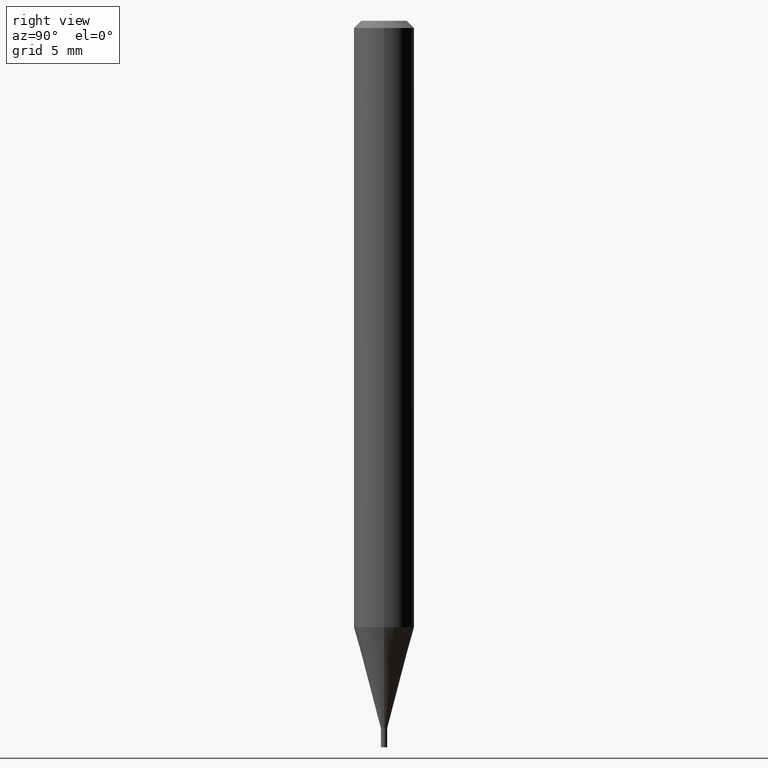
[diagram: clean part render]
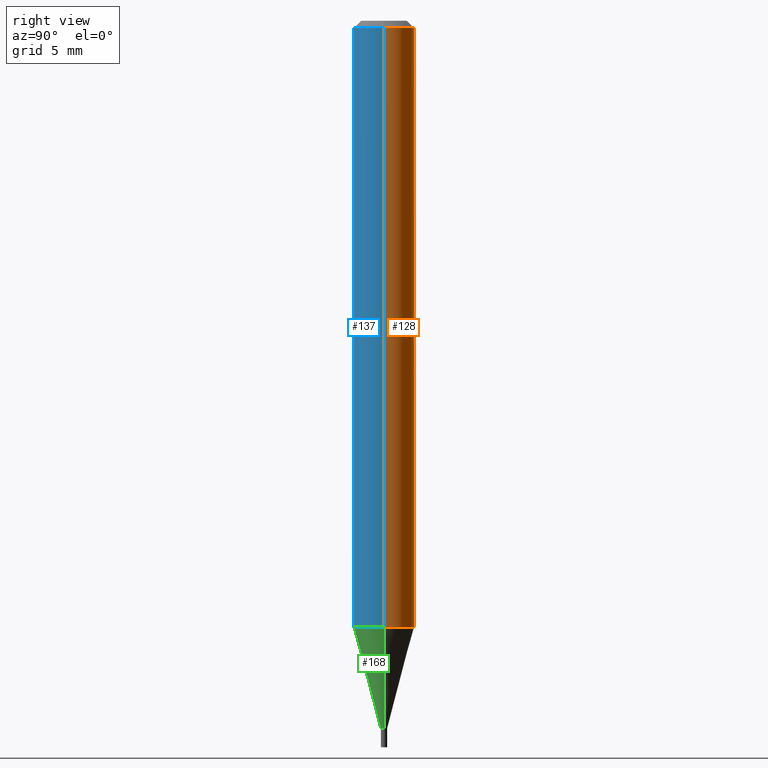
[diagram: same view with three faces highlighted in distinct colors, each labeled with its STEP entity id]
A machine part, right view with three faces highlighted in distinct colors.
Their STEP definitions:

[orange] entity #128 — the highlighted cylindrical surface (edge-blend (fillet) strip) has radius 1.5875 mm, axis along (-0, 0, 1).
#10 = CARTESIAN_POINT ( 'NONE',  ( 0.000000000000000000, 0.000000000000000000, 0.000000000000000000 ) ) ;
#17 = LINE ( 'NONE', #448, #249 ) ;
#56 = DIRECTION ( 'NONE',  ( -2.445468806185136877E-29, 3.491481338843145188E-15, 1.000000000000000000 ) ) ;
#59 = EDGE_CURVE ( 'NONE', #401, #178, #228, .T. ) ;
#71 = AXIS2_PLACEMENT_3D ( 'NONE', #10, #195, #154 ) ;
#79 = CARTESIAN_POINT ( 'NONE',  ( 0.06250000000000001388, -4.807787801391715089E-15, -1.252005154776141937 ) ) ;
#98 = AXIS2_PLACEMENT_3D ( 'NONE', #242, #274, #127 ) ;
#113 = CARTESIAN_POINT ( 'NONE',  ( 3.061739551188048942E-29, -4.371352634036324208E-15, -1.252005154776141937 ) ) ;
#121 = CIRCLE ( 'NONE', #98, 0.06250000000000000000 ) ;
#125 = VERTEX_POINT ( 'NONE', #79 ) ;
#127 = DIRECTION ( 'NONE',  ( 1.000000000000000000, -6.982962677686266711E-15, 0.000000000000000000 ) ) ;
#128 = ADVANCED_FACE ( 'NONE', ( #407 ), #439, .T. ) ;
#143 = CIRCLE ( 'NONE', #196, 0.06250000000000000000 ) ;
#154 = DIRECTION ( 'NONE',  ( 1.000000000000000000, -6.982962677686266711E-15, 4.876176775795935793E-29 ) ) ;
#156 = CARTESIAN_POINT ( 'NONE',  ( -0.06250000000000000000, 4.440892098500626162E-16, -3.074334431409316114E-30 ) ) ;
#160 = EDGE_CURVE ( 'NONE', #125, #401, #143, .T. ) ;
#178 = VERTEX_POINT ( 'NONE', #192 ) ;
#181 = EDGE_CURVE ( 'NONE', #125, #220, #17, .T. ) ;
#184 = ORIENTED_EDGE ( 'NONE', *, *, #160, .T. ) ;
#192 = CARTESIAN_POINT ( 'NONE',  ( -0.06250000000000000000, -1.767773217209423028E-15, -0.01499999999999999944 ) ) ;
#195 = DIRECTION ( 'NONE',  ( -2.445468806185136597E-29, 3.491481338843145583E-15, 1.000000000000000000 ) ) ;
#196 = AXIS2_PLACEMENT_3D ( 'NONE', #113, #330, #227 ) ;
#204 = VECTOR ( 'NONE', #261, 39.37007874015748143 ) ;
#210 = EDGE_LOOP ( 'NONE', ( #184, #213, #432, #344 ) ) ;
#213 = ORIENTED_EDGE ( 'NONE', *, *, #59, .T. ) ;
#220 = VERTEX_POINT ( 'NONE', #275 ) ;
#227 = DIRECTION ( 'NONE',  ( 1.000000000000000000, -6.982962677686262766E-15, 0.000000000000000000 ) ) ;
#228 = LINE ( 'NONE', #156, #204 ) ;
#242 = CARTESIAN_POINT ( 'NONE',  ( 3.668203209277705088E-31, -5.237222008264718399E-17, -0.01499999999999999944 ) ) ;
#249 = VECTOR ( 'NONE', #56, 39.37007874015748143 ) ;
#261 = DIRECTION ( 'NONE',  ( -2.445468806185136877E-29, 3.491481338843145188E-15, 1.000000000000000000 ) ) ;
#274 = DIRECTION ( 'NONE',  ( -2.445468806185136597E-29, 3.491481338843145583E-15, 1.000000000000000000 ) ) ;
#275 = CARTESIAN_POINT ( 'NONE',  ( 0.06250000000000000000, -4.888073874380388472E-16, -0.01499999999999999944 ) ) ;
#279 = EDGE_CURVE ( 'NONE', #220, #178, #121, .T. ) ;
#330 = DIRECTION ( 'NONE',  ( -2.445468806185136597E-29, 3.491481338843145583E-15, 1.000000000000000000 ) ) ;
#344 = ORIENTED_EDGE ( 'NONE', *, *, #181, .F. ) ;
#401 = VERTEX_POINT ( 'NONE', #459 ) ;
#407 = FACE_OUTER_BOUND ( 'NONE', #210, .T. ) ;
#432 = ORIENTED_EDGE ( 'NONE', *, *, #279, .F. ) ;
#439 = CYLINDRICAL_SURFACE ( 'NONE', #71, 0.06250000000000000000 ) ;
#448 = CARTESIAN_POINT ( 'NONE',  ( 0.06250000000000000000, -4.364351673553916694E-16, 3.047610484872459871E-30 ) ) ;
#459 = CARTESIAN_POINT ( 'NONE',  ( -0.06250000000000001388, -3.927263424186260803E-15, -1.252005154776141937 ) ) ;

[blue] entity #137 — the highlighted cylindrical surface (edge-blend (fillet) strip) has radius 1.5875 mm, axis along (-0, 0, 1).
#5 = DIRECTION ( 'NONE',  ( -2.445468806185136597E-29, 3.491481338843145583E-15, 1.000000000000000000 ) ) ;
#17 = LINE ( 'NONE', #448, #249 ) ;
#20 = CIRCLE ( 'NONE', #340, 0.06250000000000000000 ) ;
#33 = ORIENTED_EDGE ( 'NONE', *, *, #181, .T. ) ;
#56 = DIRECTION ( 'NONE',  ( -2.445468806185136877E-29, 3.491481338843145188E-15, 1.000000000000000000 ) ) ;
#59 = EDGE_CURVE ( 'NONE', #401, #178, #228, .T. ) ;
#76 = CYLINDRICAL_SURFACE ( 'NONE', #363, 0.06250000000000000000 ) ;
#79 = CARTESIAN_POINT ( 'NONE',  ( 0.06250000000000001388, -4.807787801391715089E-15, -1.252005154776141937 ) ) ;
#89 = EDGE_CURVE ( 'NONE', #401, #125, #20, .T. ) ;
#125 = VERTEX_POINT ( 'NONE', #79 ) ;
#137 = ADVANCED_FACE ( 'NONE', ( #404 ), #76, .T. ) ;
#142 = CIRCLE ( 'NONE', #218, 0.06250000000000000000 ) ;
#149 = DIRECTION ( 'NONE',  ( 1.000000000000000000, -6.982962677686262766E-15, 0.000000000000000000 ) ) ;
#156 = CARTESIAN_POINT ( 'NONE',  ( -0.06250000000000000000, 4.440892098500626162E-16, -3.074334431409316114E-30 ) ) ;
#177 = DIRECTION ( 'NONE',  ( 1.000000000000000000, -6.982962677686266711E-15, 0.000000000000000000 ) ) ;
#178 = VERTEX_POINT ( 'NONE', #192 ) ;
#181 = EDGE_CURVE ( 'NONE', #125, #220, #17, .T. ) ;
#192 = CARTESIAN_POINT ( 'NONE',  ( -0.06250000000000000000, -1.767773217209423028E-15, -0.01499999999999999944 ) ) ;
#204 = VECTOR ( 'NONE', #261, 39.37007874015748143 ) ;
#218 = AXIS2_PLACEMENT_3D ( 'NONE', #316, #428, #177 ) ;
#220 = VERTEX_POINT ( 'NONE', #275 ) ;
#228 = LINE ( 'NONE', #156, #204 ) ;
#241 = ORIENTED_EDGE ( 'NONE', *, *, #59, .F. ) ;
#249 = VECTOR ( 'NONE', #56, 39.37007874015748143 ) ;
#261 = DIRECTION ( 'NONE',  ( -2.445468806185136877E-29, 3.491481338843145188E-15, 1.000000000000000000 ) ) ;
#275 = CARTESIAN_POINT ( 'NONE',  ( 0.06250000000000000000, -4.888073874380388472E-16, -0.01499999999999999944 ) ) ;
#283 = ORIENTED_EDGE ( 'NONE', *, *, #89, .T. ) ;
#300 = DIRECTION ( 'NONE',  ( -2.445468806185136597E-29, 3.491481338843145583E-15, 1.000000000000000000 ) ) ;
#316 = CARTESIAN_POINT ( 'NONE',  ( 3.668203209277705088E-31, -5.237222008264718399E-17, -0.01499999999999999944 ) ) ;
#323 = ORIENTED_EDGE ( 'NONE', *, *, #399, .F. ) ;
#336 = DIRECTION ( 'NONE',  ( 1.000000000000000000, -6.982962677686266711E-15, 4.876176775795935793E-29 ) ) ;
#340 = AXIS2_PLACEMENT_3D ( 'NONE', #441, #300, #149 ) ;
#363 = AXIS2_PLACEMENT_3D ( 'NONE', #377, #5, #336 ) ;
#377 = CARTESIAN_POINT ( 'NONE',  ( 0.000000000000000000, 0.000000000000000000, 0.000000000000000000 ) ) ;
#397 = EDGE_LOOP ( 'NONE', ( #241, #283, #33, #323 ) ) ;
#399 = EDGE_CURVE ( 'NONE', #178, #220, #142, .T. ) ;
#401 = VERTEX_POINT ( 'NONE', #459 ) ;
#404 = FACE_OUTER_BOUND ( 'NONE', #397, .T. ) ;
#428 = DIRECTION ( 'NONE',  ( -2.445468806185136597E-29, 3.491481338843145583E-15, 1.000000000000000000 ) ) ;
#441 = CARTESIAN_POINT ( 'NONE',  ( 3.061739551188048942E-29, -4.371352634036324208E-15, -1.252005154776141937 ) ) ;
#448 = CARTESIAN_POINT ( 'NONE',  ( 0.06250000000000000000, -4.364351673553916694E-16, 3.047610484872459871E-30 ) ) ;
#459 = CARTESIAN_POINT ( 'NONE',  ( -0.06250000000000001388, -3.927263424186260803E-15, -1.252005154776141937 ) ) ;

[green] entity #168 — the highlighted conical surface has half-angle 15 deg.
#20 = CIRCLE ( 'NONE', #340, 0.06250000000000000000 ) ;
#26 = EDGE_CURVE ( 'NONE', #67, #125, #443, .T. ) ;
#40 = DIRECTION ( 'NONE',  ( -0.2588190451025211281, 5.211531920934548675E-15, 0.9659258262890682012 ) ) ;
#41 = CARTESIAN_POINT ( 'NONE',  ( 0.006499999999999648420, -5.146443493454794469E-15, -1.461000000000000076 ) ) ;
#65 = CARTESIAN_POINT ( 'NONE',  ( -0.006499999999999648420, -5.054868958225431584E-15, -1.461000000000000076 ) ) ;
#67 = VERTEX_POINT ( 'NONE', #260 ) ;
#79 = CARTESIAN_POINT ( 'NONE',  ( 0.06250000000000001388, -4.807787801391715089E-15, -1.252005154776141937 ) ) ;
#88 = ORIENTED_EDGE ( 'NONE', *, *, #433, .F. ) ;
#89 = EDGE_CURVE ( 'NONE', #401, #125, #20, .T. ) ;
#94 = CARTESIAN_POINT ( 'NONE',  ( 3.572829925836484317E-29, -5.101054236049835376E-15, -1.461000000000000076 ) ) ;
#99 = DIRECTION ( 'NONE',  ( -2.445468806185136597E-29, 3.491481338843145583E-15, 1.000000000000000000 ) ) ;
#101 = VERTEX_POINT ( 'NONE', #444 ) ;
#114 = VECTOR ( 'NONE', #298, 39.37007874015748143 ) ;
#125 = VERTEX_POINT ( 'NONE', #79 ) ;
#131 = VECTOR ( 'NONE', #40, 39.37007874015748143 ) ;
#133 = CONICAL_SURFACE ( 'NONE', #409, 0.006499999999999648420, 0.2617993877991497964 ) ;
#145 = ORIENTED_EDGE ( 'NONE', *, *, #26, .T. ) ;
#149 = DIRECTION ( 'NONE',  ( 1.000000000000000000, -6.982962677686262766E-15, 0.000000000000000000 ) ) ;
#168 = ADVANCED_FACE ( 'NONE', ( #190 ), #133, .T. ) ;
#183 = ORIENTED_EDGE ( 'NONE', *, *, #89, .F. ) ;
#190 = FACE_OUTER_BOUND ( 'NONE', #466, .T. ) ;
#211 = AXIS2_PLACEMENT_3D ( 'NONE', #94, #99, #250 ) ;
#250 = DIRECTION ( 'NONE',  ( 1.000000000000000000, -6.982962677686336919E-15, 0.000000000000000000 ) ) ;
#259 = CARTESIAN_POINT ( 'NONE',  ( 3.572829925836484317E-29, -5.101054236049835376E-15, -1.461000000000000076 ) ) ;
#260 = CARTESIAN_POINT ( 'NONE',  ( 0.006499999999999648420, -5.146443493454794469E-15, -1.461000000000000076 ) ) ;
#290 = ORIENTED_EDGE ( 'NONE', *, *, #462, .T. ) ;
#292 = CIRCLE ( 'NONE', #211, 0.006499999999999648420 ) ;
#298 = DIRECTION ( 'NONE',  ( 0.2588190451025211281, 1.565188264969623940E-15, 0.9659258262890682012 ) ) ;
#300 = DIRECTION ( 'NONE',  ( -2.445468806185136597E-29, 3.491481338843145583E-15, 1.000000000000000000 ) ) ;
#340 = AXIS2_PLACEMENT_3D ( 'NONE', #441, #300, #149 ) ;
#401 = VERTEX_POINT ( 'NONE', #459 ) ;
#405 = DIRECTION ( 'NONE',  ( -2.445468806185136597E-29, 3.491481338843145583E-15, 1.000000000000000000 ) ) ;
#409 = AXIS2_PLACEMENT_3D ( 'NONE', #259, #405, #410 ) ;
#410 = DIRECTION ( 'NONE',  ( 1.000000000000000000, -6.982962677686336919E-15, 0.000000000000000000 ) ) ;
#433 = EDGE_CURVE ( 'NONE', #101, #401, #465, .T. ) ;
#441 = CARTESIAN_POINT ( 'NONE',  ( 3.061739551188048942E-29, -4.371352634036324208E-15, -1.252005154776141937 ) ) ;
#443 = LINE ( 'NONE', #41, #114 ) ;
#444 = CARTESIAN_POINT ( 'NONE',  ( -0.006499999999999648420, -4.491066191205846194E-15, -1.461000000000000076 ) ) ;
#459 = CARTESIAN_POINT ( 'NONE',  ( -0.06250000000000001388, -3.927263424186260803E-15, -1.252005154776141937 ) ) ;
#462 = EDGE_CURVE ( 'NONE', #101, #67, #292, .T. ) ;
#465 = LINE ( 'NONE', #65, #131 ) ;
#466 = EDGE_LOOP ( 'NONE', ( #88, #290, #145, #183 ) ) ;